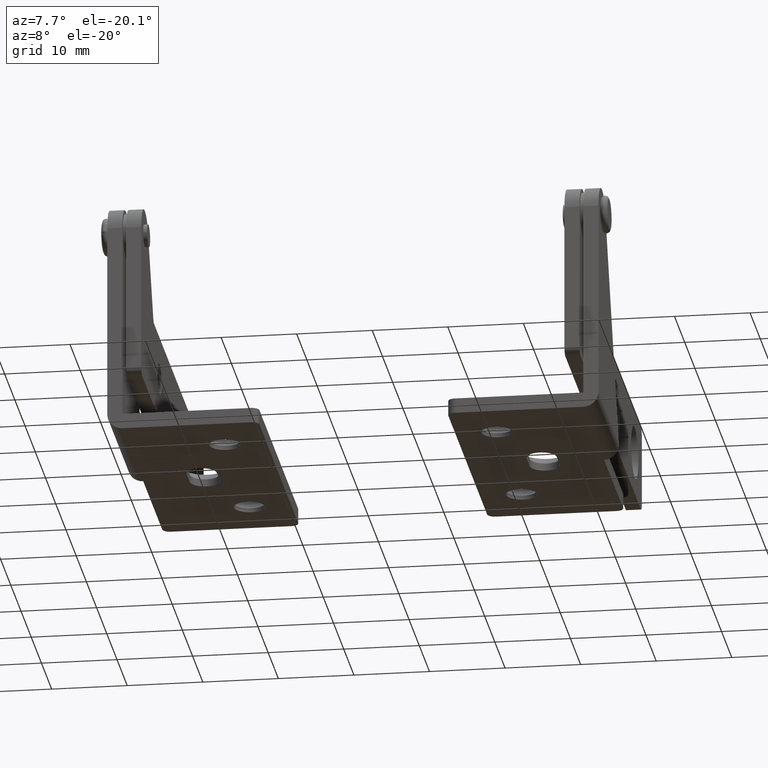
[diagram: clean part render]
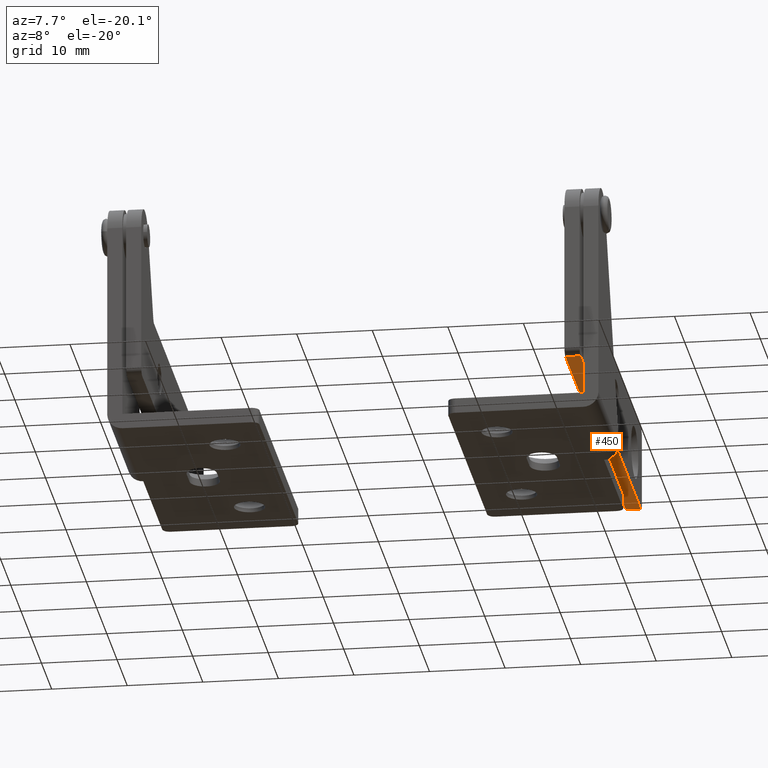
[diagram: same view with one face highlighted and labeled with its STEP entity id]
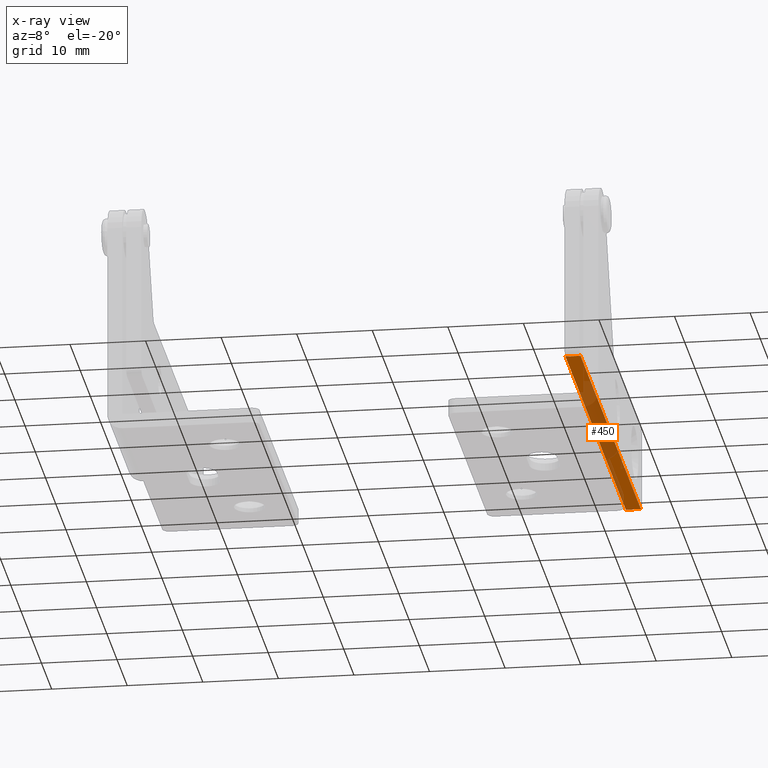
[diagram: x-ray of the same camera — body ghosted, the highlighted face saturated]
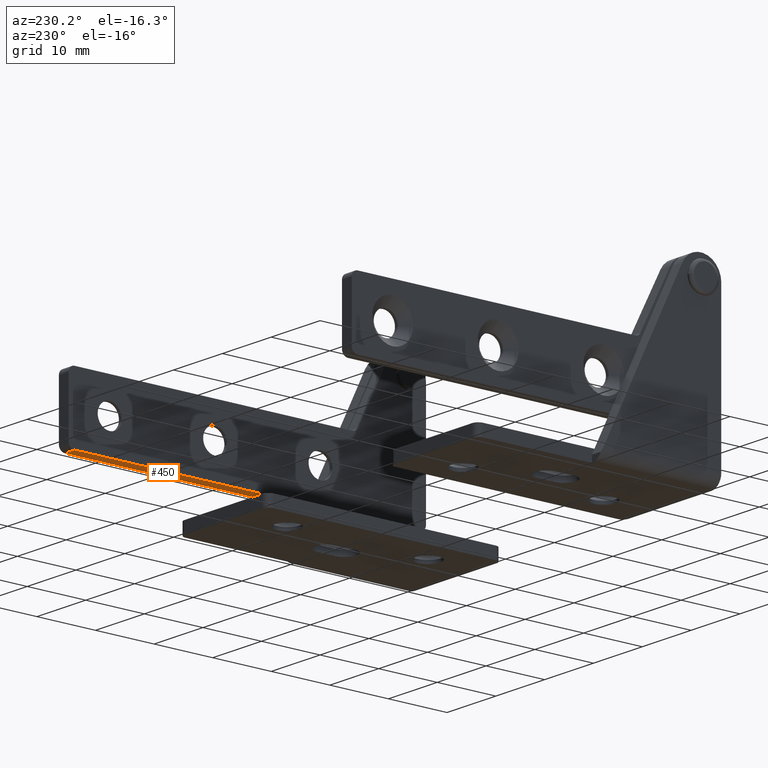
[diagram: same view with one face highlighted and labeled with its STEP entity id]
A machine part, auxiliary view. The second image highlights one B-rep face of the part: STEP entity #450.
The next image is the same camera in x-ray: the body ghosted, the highlighted face saturated — about 52% of this face is hidden behind the body in this view.
A second angle (auxiliary view) of the same face is appended — the face is thin or edge-on in the first view.
In plain terms, the highlighted planar face has unit normal (0, 0, 1).
Its self-contained STEP definition (entity closure, byte-faithful):
#450=ADVANCED_FACE('',(#1674),#1673,.F.);
#1673=PLANE('',#2780);
#1674=FACE_OUTER_BOUND('',#2781,.T.);
#2777=CARTESIAN_POINT('',(8.40000000000E+000,-2.00000000000E-001,-2.05000000000E+001));
#2778=DIRECTION('',(0.00000000000E+000,0.00000000000E+000,-1.00000000000E+000));
#2779=DIRECTION('',(-1.00000000000E+000,0.00000000000E+000,0.00000000000E+000));
#2780=AXIS2_PLACEMENT_3D('',#2777,#2778,#2779);
#2781=EDGE_LOOP('',(#3629,#3630,#3631,#3632));
#3629=ORIENTED_EDGE('',*,*,#4015,.T.);
#3630=ORIENTED_EDGE('',*,*,#4037,.F.);
#3631=ORIENTED_EDGE('',*,*,#3998,.F.);
#3632=ORIENTED_EDGE('',*,*,#4034,.T.);
#3998=EDGE_CURVE('',#5808,#5815,#5816,.T.);
#4015=EDGE_CURVE('',#5933,#5934,#5935,.T.);
#4034=EDGE_CURVE('',#5808,#5933,#6066,.T.);
#4037=EDGE_CURVE('',#5815,#5934,#6084,.T.);
#5808=VERTEX_POINT('',#7434);
#5815=VERTEX_POINT('',#7439);
#5816=LINE('',#7440,#7441);
#5933=VERTEX_POINT('',#7518);
#5934=VERTEX_POINT('',#7519);
#5935=LINE('',#7520,#7521);
#6066=LINE('',#7608,#7609);
#6084=LINE('',#7617,#7618);
#7434=CARTESIAN_POINT('',(-5.65000000000E+001,2.00000000000E+000,-2.05000000000E+001));
#7439=CARTESIAN_POINT('',(2.50000000000E+000,2.00000000000E+000,-2.05000000000E+001));
#7440=CARTESIAN_POINT('',(-5.65000000000E+001,2.00000000000E+000,-2.05000000000E+001));
#7441=VECTOR('',#7442,5.90000000000E+001);
#7442=DIRECTION('',(1.00000000000E+000,0.00000000000E+000,0.00000000000E+000));
#7518=CARTESIAN_POINT('',(-5.65000000000E+001,0.00000000000E+000,-2.05000000000E+001));
#7519=CARTESIAN_POINT('',(2.50000000000E+000,0.00000000000E+000,-2.05000000000E+001));
#7520=CARTESIAN_POINT('',(-5.65000000000E+001,0.00000000000E+000,-2.05000000000E+001));
#7521=VECTOR('',#7522,5.90000000000E+001);
#7522=DIRECTION('',(1.00000000000E+000,0.00000000000E+000,0.00000000000E+000));
#7608=CARTESIAN_POINT('',(-5.65000000000E+001,2.00000000000E+000,-2.05000000000E+001));
#7609=VECTOR('',#7610,2.00000000000E+000);
#7610=DIRECTION('',(0.00000000000E+000,-1.00000000000E+000,0.00000000000E+000));
#7617=CARTESIAN_POINT('',(2.50000000000E+000,2.00000000000E+000,-2.05000000000E+001));
#7618=VECTOR('',#7619,2.00000000000E+000);
#7619=DIRECTION('',(0.00000000000E+000,-1.00000000000E+000,0.00000000000E+000));